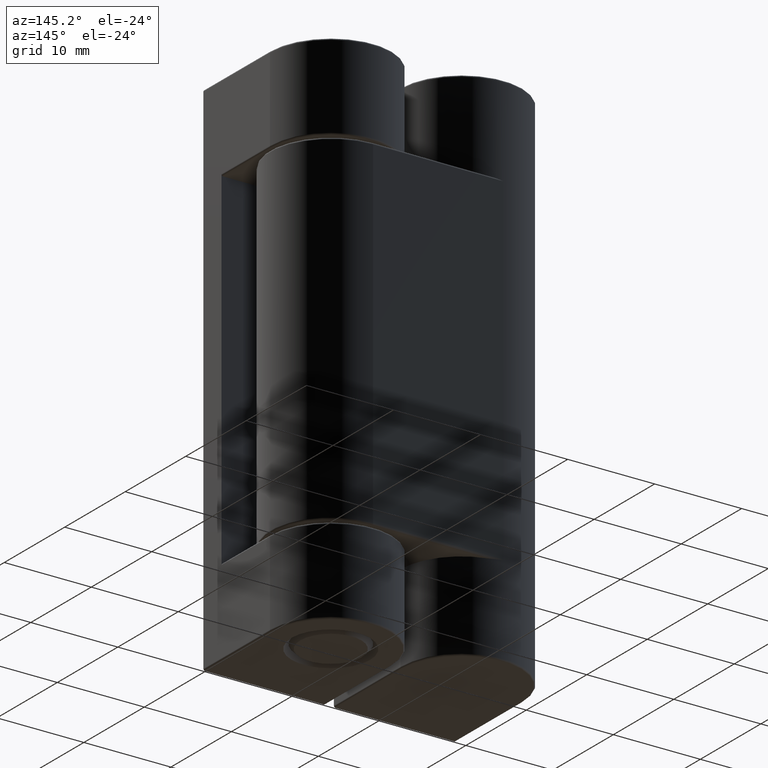
[diagram: clean part render]
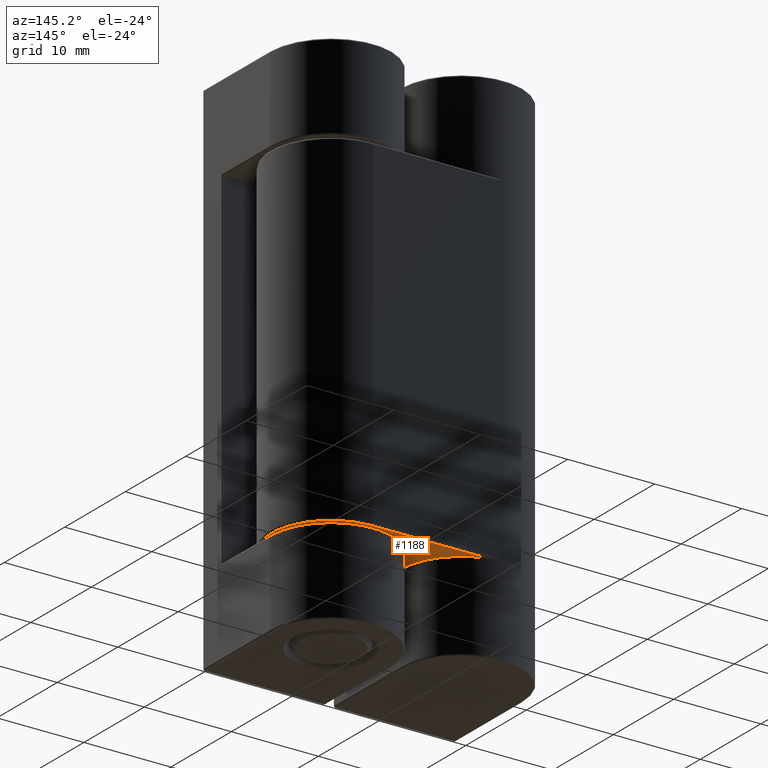
[diagram: same view with one face highlighted and labeled with its STEP entity id]
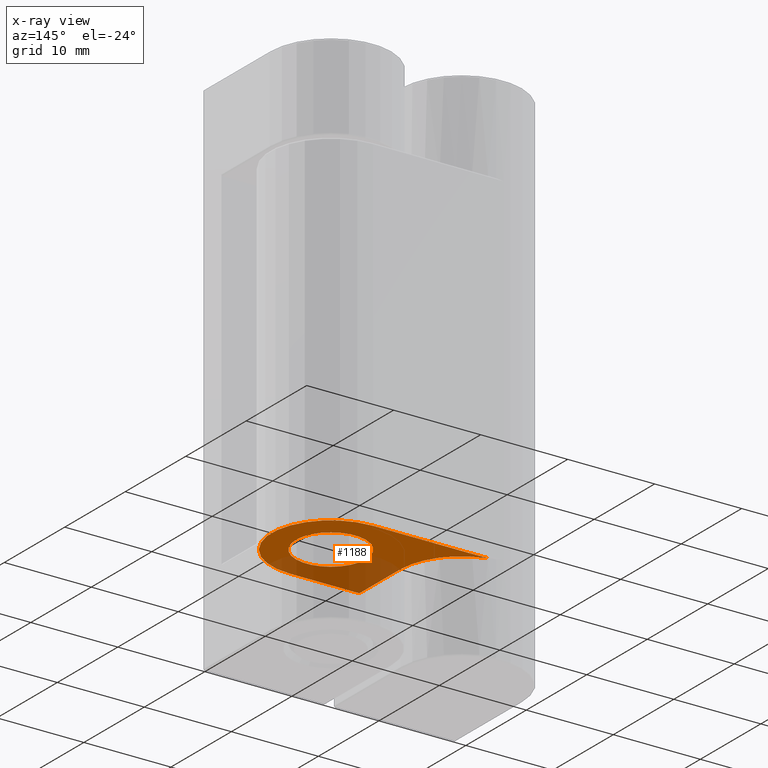
[diagram: x-ray of the same camera — body ghosted, the highlighted face saturated]
A machine part, auxiliary view. The second image highlights one B-rep face of the part: STEP entity #1188.
The next image is the same camera in x-ray: the body ghosted, the highlighted face saturated — about 37% of this face is hidden behind the body in this view.
In plain terms, the highlighted planar face has unit normal (0, 0, 1).
Its self-contained STEP definition (entity closure, byte-faithful):
#39=FACE_BOUND('',#215,.T.);
#81=PLANE('',#1296);
#138=FACE_OUTER_BOUND('',#214,.T.);
#214=EDGE_LOOP('',(#960,#961,#962,#963,#964));
#215=EDGE_LOOP('',(#965));
#277=LINE('',#1767,#368);
#279=LINE('',#1784,#370);
#298=LINE('',#1849,#389);
#368=VECTOR('',#1382,13.3386752274164);
#370=VECTOR('',#1396,8.);
#389=VECTOR('',#1457,6.80000000000001);
#461=CIRCLE('',#1234,6.8);
#477=CIRCLE('',#1262,7.);
#489=CIRCLE('',#1294,4.);
#528=VERTEX_POINT('',#1764);
#529=VERTEX_POINT('',#1766);
#532=VERTEX_POINT('',#1776);
#534=VERTEX_POINT('',#1782);
#555=VERTEX_POINT('',#1847);
#589=VERTEX_POINT('',#1957);
#638=EDGE_CURVE('',#528,#529,#277,.T.);
#642=EDGE_CURVE('',#532,#528,#461,.T.);
#645=EDGE_CURVE('',#534,#532,#279,.T.);
#676=EDGE_CURVE('',#555,#534,#298,.T.);
#683=EDGE_CURVE('',#529,#555,#477,.T.);
#730=EDGE_CURVE('',#589,#589,#489,.T.);
#960=ORIENTED_EDGE('',*,*,#645,.F.);
#961=ORIENTED_EDGE('',*,*,#676,.F.);
#962=ORIENTED_EDGE('',*,*,#683,.F.);
#963=ORIENTED_EDGE('',*,*,#638,.F.);
#964=ORIENTED_EDGE('',*,*,#642,.F.);
#965=ORIENTED_EDGE('',*,*,#730,.T.);
#1188=ADVANCED_FACE('',(#138,#39),#81,.F.);
#1234=AXIS2_PLACEMENT_3D('',#1778,#1388,#1389);
#1262=AXIS2_PLACEMENT_3D('',#1861,#1468,#1469);
#1294=AXIS2_PLACEMENT_3D('',#1958,#1567,#1568);
#1296=AXIS2_PLACEMENT_3D('',#1961,#1571,#1572);
#1382=DIRECTION('',(-1.,1.48029736616688E-16,0.));
#1388=DIRECTION('center_axis',(0.,0.,1.));
#1389=DIRECTION('ref_axis',(1.,0.,0.));
#1396=DIRECTION('',(1.,1.48029736616688E-16,0.));
#1457=DIRECTION('',(6.05576195250086E-16,-1.,0.));
#1468=DIRECTION('center_axis',(0.,0.,-1.));
#1469=DIRECTION('ref_axis',(1.,0.,0.));
#1567=DIRECTION('center_axis',(0.,0.,1.));
#1568=DIRECTION('ref_axis',(-1.,0.,0.));
#1571=DIRECTION('center_axis',(0.,0.,1.));
#1572=DIRECTION('ref_axis',(1.,0.,0.));
#1764=CARTESIAN_POINT('',(15.,17.8,-49.75));
#1766=CARTESIAN_POINT('',(1.66132477258362,17.8,-49.75));
#1767=CARTESIAN_POINT('',(4.91691773294659,17.8,-49.75));
#1776=CARTESIAN_POINT('',(15.,4.2,-49.75));
#1778=CARTESIAN_POINT('Origin',(15.,11.,-49.75));
#1782=CARTESIAN_POINT('',(7.,4.2,-49.75));
#1784=CARTESIAN_POINT('',(12.4169177329466,4.2,-49.75));
#1847=CARTESIAN_POINT('',(6.99999999999999,11.,-49.75));
#1849=CARTESIAN_POINT('',(6.99999999999999,11.,-49.75));
#1861=CARTESIAN_POINT('Origin',(-1.17961196366423E-15,11.,-49.75));
#1957=CARTESIAN_POINT('',(19.,11.,-49.75));
#1958=CARTESIAN_POINT('Origin',(15.,11.,-49.75));
#1961=CARTESIAN_POINT('Origin',(9.83383546589318,11.,-49.75));